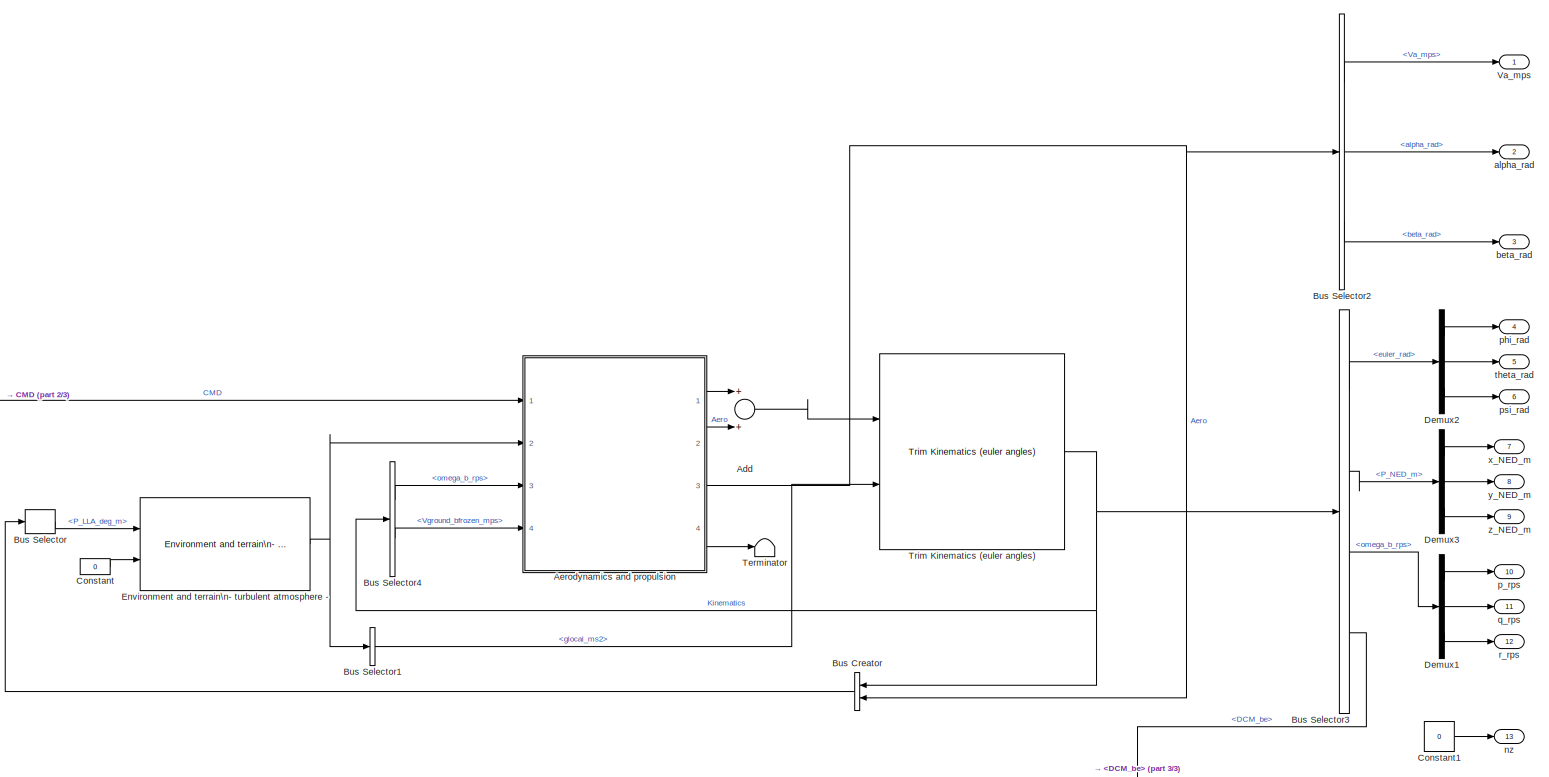
[diagram: root canvas - part 1/3, full width, middle band]
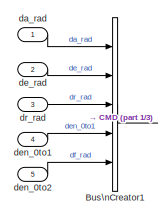
[diagram: root canvas - part 2/3, middle left region]
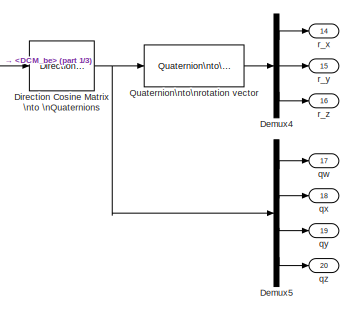
[diagram: root canvas - part 3/3, bottom right region]
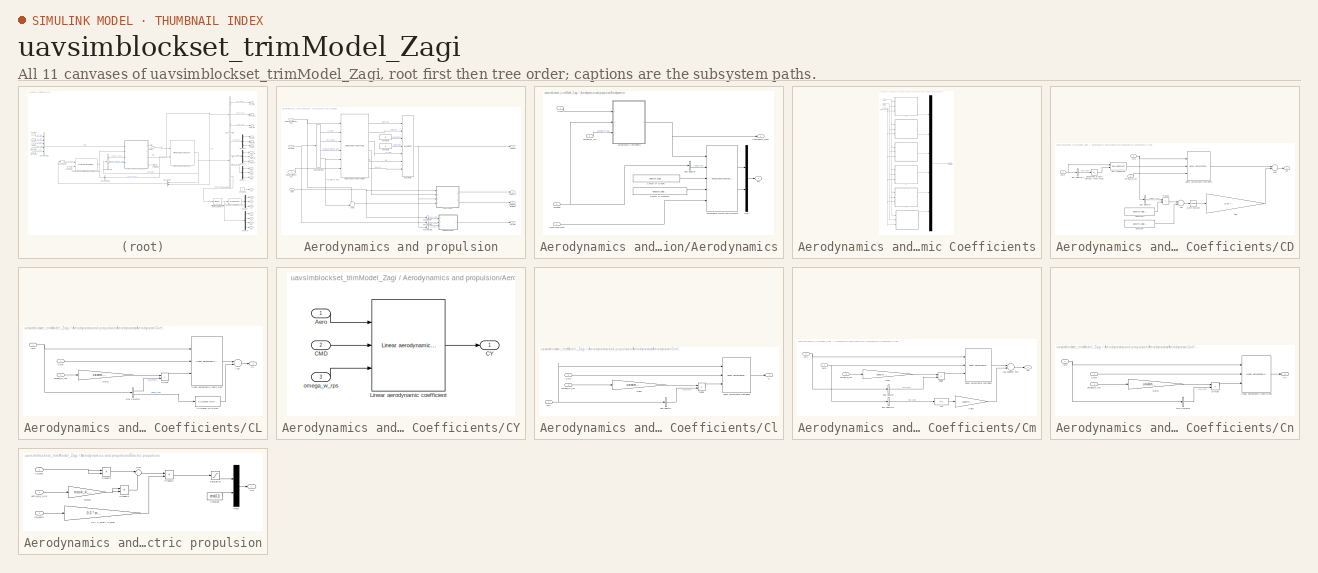
[diagram: thumbnail index - all 11 canvases of the model, root first then tree order]
MODEL uavsimblockset_trimModel_Zagi
KIND model
BLOCK [Sum] Add
  InputSameDT = off
  OutDataTypeStr = Inherit: Inherit via internal rule
  Ports = [2, 1]
  SID = 1059
  SaturateOnIntegerOverflow = off
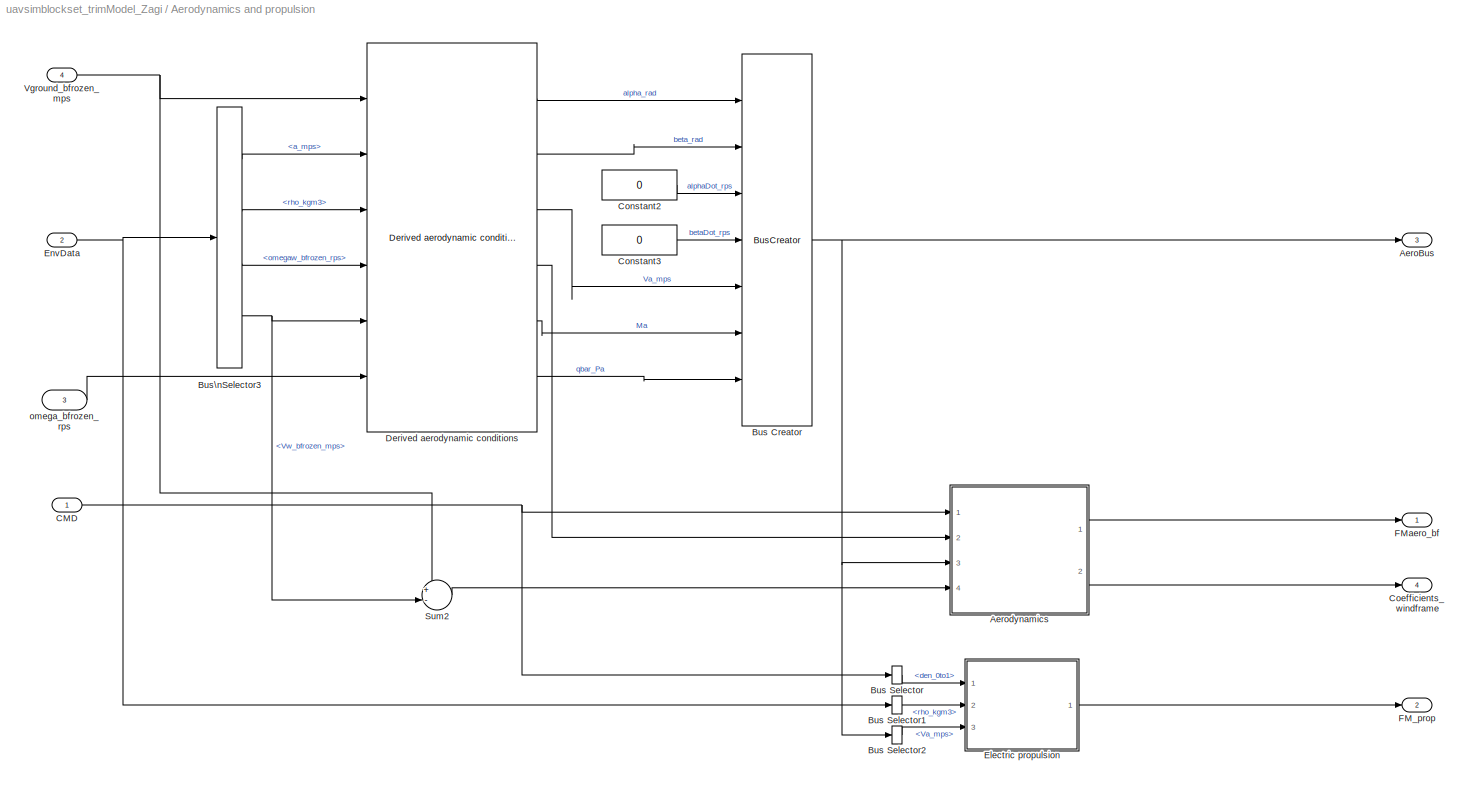
BLOCK [SubSystem] Aerodynamics and propulsion
  AncestorBlock = uavsimBlockset_Zagi_Aerandpropulsion/Zagi aerodynamics and propulsion
  FunctionWithSeparateData = off
  MaskHideContents = off
  MinAlgLoopOccurrences = off
  Opaque = off
  Ports = [4, 4]
  PropExecContextOutsideSubsystem = off
  RTWSystemCode = Auto
  RequestExecContextInheritance = off
  SID = 1023
BLOCK [Outport] Aerodynamics and propulsion/AeroBus
  IconDisplay = Port number
  OutDataTypeStr = Bus: Aero
  Port = 3
  SID = 1023:335
BLOCK [SubSystem] Aerodynamics and propulsion/Aerodynamics
  FunctionWithSeparateData = off
  MaskHideContents = off
  MinAlgLoopOccurrences = off
  Opaque = off
  Ports = [4, 2]
  PropExecContextOutsideSubsystem = off
  RTWSystemCode = Auto
  RequestExecContextInheritance = off
  SID = 1023:325
BLOCK [Inport] Aerodynamics and propulsion/Aerodynamics/AeroBus
  IconDisplay = Port number
  OutDataTypeStr = Bus: Aero
  Port = 3
  SID = 1023:339
BLOCK [SubSystem] Aerodynamics and propulsion/Aerodynamics/Aerodynamic Coefficients
  FunctionWithSeparateData = off
  MaskHideContents = off
  MinAlgLoopOccurrences = off
  Opaque = off
  Ports = [3, 1]
  PropExecContextOutsideSubsystem = off
  RTWSystemCode = Auto
  RequestExecContextInheritance = off
  SID = 1023:340
BLOCK [Inport] Aerodynamics and propulsion/Aerodynamics/Aerodynamic Coefficients/Aero
  IconDisplay = Port number
  OutDataTypeStr = Bus: Aero
  Port = 2
  SID = 1023:4174
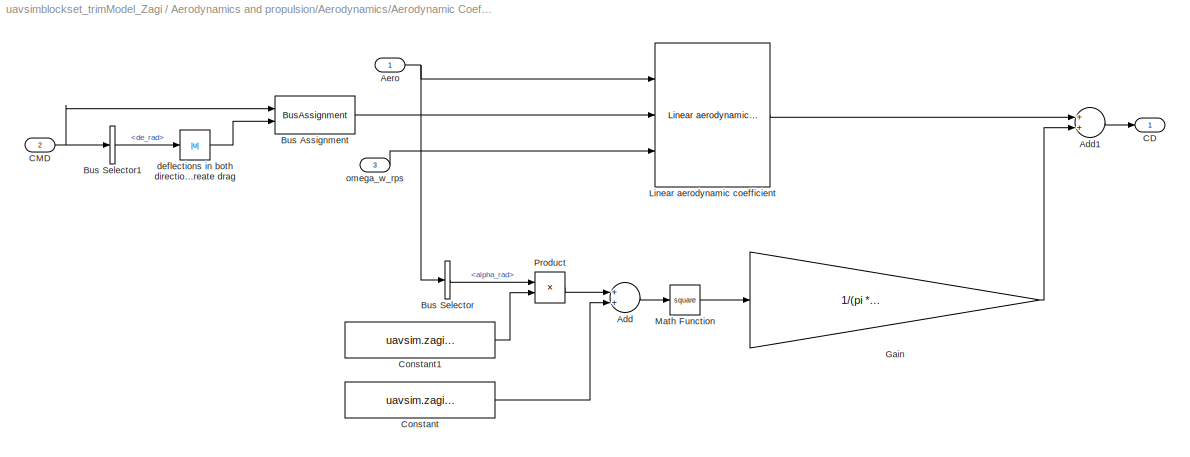
BLOCK [SubSystem] Aerodynamics and propulsion/Aerodynamics/Aerodynamic Coefficients/CD
  FunctionWithSeparateData = off
  MaskHideContents = off
  MinAlgLoopOccurrences = off
  Opaque = off
  Ports = [3, 1]
  PropExecContextOutsideSubsystem = off
  RTWSystemCode = Auto
  RequestExecContextInheritance = off
  SID = 1023:4092
BLOCK [Sum] Aerodynamics and propulsion/Aerodynamics/Aerodynamic Coefficients/CD/Add
  InputSameDT = off
  OutDataTypeStr = Inherit: Inherit via internal rule
  Ports = [2, 1]
  SID = 1023:4158
  SaturateOnIntegerOverflow = off
BLOCK [Sum] Aerodynamics and propulsion/Aerodynamics/Aerodynamic Coefficients/CD/Add1
  InputSameDT = off
  OutDataTypeStr = Inherit: Inherit via internal rule
  Ports = [2, 1]
  SID = 1023:4164
  SaturateOnIntegerOverflow = off
BLOCK [Inport] Aerodynamics and propulsion/Aerodynamics/Aerodynamic Coefficients/CD/Aero
  IconDisplay = Port number
  OutDataTypeStr = Bus: Aero
  SID = 1023:4093
BLOCK [BusAssignment] Aerodynamics and propulsion/Aerodynamics/Aerodynamic Coefficients/CD/Bus Assignment
  AssignedSignals = de_rad
  Ports = [2, 1]
  SID = 1023:4376
BLOCK [BusSelector] Aerodynamics and propulsion/Aerodynamics/Aerodynamic Coefficients/CD/Bus Selector
  OutputSignals = alpha_rad
  Ports = [1, 1]
  SID = 1023:4367
BLOCK [BusSelector] Aerodynamics and propulsion/Aerodynamics/Aerodynamic Coefficients/CD/Bus Selector1
  OutputSignals = de_rad
  Ports = [1, 1]
  SID = 1023:4377
BLOCK [Outport] Aerodynamics and propulsion/Aerodynamics/Aerodynamic Coefficients/CD/CD
  IconDisplay = Port number
  SID = 1023:4094
BLOCK [Inport] Aerodynamics and propulsion/Aerodynamics/Aerodynamic Coefficients/CD/CMD
  IconDisplay = Port number
  OutDataTypeStr = Bus: CMD
  Port = 2
  SID = 1023:4179
BLOCK [Constant] Aerodynamics and propulsion/Aerodynamics/Aerodynamic Coefficients/CD/Constant
  SID = 1023:4156
  Value = uavsim.zagi.CL_0
BLOCK [Constant] Aerodynamics and propulsion/Aerodynamics/Aerodynamic Coefficients/CD/Constant1
  SID = 1023:4366
  Value = uavsim.zagi.CL_alpha
BLOCK [Gain] Aerodynamics and propulsion/Aerodynamics/Aerodynamic Coefficients/CD/Gain
  Gain = 1/(pi * uavsim.zagi.oswald * uavsim.zagi.AR)
  OutDataTypeStr = Inherit: Inherit via internal rule
  ParamDataTypeStr = Inherit: Inherit via internal rule
  SID = 1023:4157
  SaturateOnIntegerOverflow = off
BLOCK [Reference] Aerodynamics and propulsion/Aerodynamics/Aerodynamic Coefficients/CD/Linear aerodynamic coefficient  REF=uavsimBlockset_LinearAerodynamicCoefficient/Linear aerodynamic coefficient
  Ports = [3, 1]
  SID = 1023:4091
  SourceBlock = uavsimBlockset_LinearAerodynamicCoefficient/Linear aerodynamic coefficient
  mask_C_0 = uavsim.zagi.CD_0
  mask_C_Mach = 0
  mask_C_alpha = 0
  mask_C_alphaDot = 0
  mask_C_beta = 0
  mask_C_betaDot = 0
  mask_C_delta_a = 0
  mask_C_delta_e = uavsim.zagi.CD_de
  mask_C_delta_f = 0
  mask_C_delta_r = 0
  mask_C_p = 0
  mask_C_q = 0
  mask_C_r = 0
BLOCK [Math] Aerodynamics and propulsion/Aerodynamics/Aerodynamic Coefficients/CD/Math Function
  Operator = square
  Ports = [1, 1]
  SID = 1023:4163
BLOCK [Product] Aerodynamics and propulsion/Aerodynamics/Aerodynamic Coefficients/CD/Product
  InputSameDT = off
  OutDataTypeStr = Inherit: Inherit via internal rule
  Ports = [2, 1]
  SID = 1023:4368
  SaturateOnIntegerOverflow = off
BLOCK [Abs] Aerodynamics and propulsion/Aerodynamics/Aerodynamic Coefficients/CD/deflections in both directions\nalways create drag
  SID = 1023:4378
  SaturateOnIntegerOverflow = off
BLOCK [Inport] Aerodynamics and propulsion/Aerodynamics/Aerodynamic Coefficients/CD/omega_w_rps
  IconDisplay = Port number
  Port = 3
  SID = 1023:4186
BLOCK [SubSystem] Aerodynamics and propulsion/Aerodynamics/Aerodynamic Coefficients/CL
  FunctionWithSeparateData = off
  MaskHideContents = off
  MinAlgLoopOccurrences = off
  Opaque = off
  Ports = [3, 1]
  PropExecContextOutsideSubsystem = off
  RTWSystemCode = Auto
  RequestExecContextInheritance = off
  SID = 1023:4210
BLOCK [Sum] Aerodynamics and propulsion/Aerodynamics/Aerodynamic Coefficients/CL/Add
  InputSameDT = off
  OutDataTypeStr = Inherit: Inherit via internal rule
  Ports = [2, 1]
  SID = 1023:4428
  SaturateOnIntegerOverflow = off
BLOCK [Inport] Aerodynamics and propulsion/Aerodynamics/Aerodynamic Coefficients/CL/Aero
  IconDisplay = Port number
  OutDataTypeStr = Bus: Aero
  SID = 1023:4211
BLOCK [BusSelector] Aerodynamics and propulsion/Aerodynamics/Aerodynamic Coefficients/CL/Bus Selector
  OutputSignals = Va_mps,alpha_rad
  Ports = [1, 2]
  SID = 1023:4214
BLOCK [Outport] Aerodynamics and propulsion/Aerodynamics/Aerodynamic Coefficients/CL/CL
  IconDisplay = Port number
  SID = 1023:4218
BLOCK [Reference] Aerodynamics and propulsion/Aerodynamics/Aerodynamic Coefficients/CL/CL(alpha) with stall  REF=uavsimBlockset_LiftCoefficientWithStall/CL(alpha) with stall
  Ports = [1, 1]
  SID = 1023:4427
  SourceBlock = uavsimBlockset_LiftCoefficientWithStall/CL(alpha) with stall
  mask_CL_0 = uavsim.zagi.CL_0
  mask_CL_alpha = uavsim.zagi.CL_alpha
  mask_M = uavsim.zagi.stall.M
  mask_alpha0 = uavsim.zagi.alpha0
BLOCK [Inport] Aerodynamics and propulsion/Aerodynamics/Aerodynamic Coefficients/CL/CMD
  IconDisplay = Port number
  OutDataTypeStr = Bus: CMD
  Port = 2
  SID = 1023:4212
BLOCK [Product] Aerodynamics and propulsion/Aerodynamics/Aerodynamic Coefficients/CL/Divide
  InputSameDT = off
  Inputs = */
  OutDataTypeStr = Inherit: Inherit via internal rule
  Ports = [2, 1]
  RndMeth = Floor
  SID = 1023:4215
  SaturateOnIntegerOverflow = off
BLOCK [Gain] Aerodynamics and propulsion/Aerodynamics/Aerodynamic Coefficients/CL/Gain1
  Gain = uavsim.zagi.c / 2
  OutDataTypeStr = Inherit: Inherit via internal rule
  ParamDataTypeStr = Inherit: Inherit via internal rule
  SID = 1023:4216
  SaturateOnIntegerOverflow = off
BLOCK [Reference] Aerodynamics and propulsion/Aerodynamics/Aerodynamic Coefficients/CL/Linear aerodynamic coefficient  REF=uavsimBlockset_LinearAerodynamicCoefficient/Linear aerodynamic coefficient
  Ports = [3, 1]
  SID = 1023:4217
  SourceBlock = uavsimBlockset_LinearAerodynamicCoefficient/Linear aerodynamic coefficient
  mask_C_0 = 0
  mask_C_Mach = 0
  mask_C_alpha = 0
  mask_C_alphaDot = 0
  mask_C_beta = 0
  mask_C_betaDot = 0
  mask_C_delta_a = 0
  mask_C_delta_e = uavsim.zagi.CL_de
  mask_C_delta_f = 0
  mask_C_delta_r = 0
  mask_C_p = 0
  mask_C_q = uavsim.zagi.CL_q
  mask_C_r = 0
BLOCK [Inport] Aerodynamics and propulsion/Aerodynamics/Aerodynamic Coefficients/CL/omega_w_rps
  IconDisplay = Port number
  Port = 3
  SID = 1023:4213
BLOCK [Inport] Aerodynamics and propulsion/Aerodynamics/Aerodynamic Coefficients/CMD
  IconDisplay = Port number
  SID = 1023:341
BLOCK [SubSystem] Aerodynamics and propulsion/Aerodynamics/Aerodynamic Coefficients/CY
  FunctionWithSeparateData = off
  MaskHideContents = off
  MinAlgLoopOccurrences = off
  Opaque = off
  Ports = [3, 1]
  PropExecContextOutsideSubsystem = off
  RTWSystemCode = Auto
  RequestExecContextInheritance = off
  SID = 1023:4196
BLOCK [Inport] Aerodynamics and propulsion/Aerodynamics/Aerodynamic Coefficients/CY/Aero
  IconDisplay = Port number
  OutDataTypeStr = Bus: Aero
  SID = 1023:4197
BLOCK [Inport] Aerodynamics and propulsion/Aerodynamics/Aerodynamic Coefficients/CY/CMD
  IconDisplay = Port number
  OutDataTypeStr = Bus: CMD
  Port = 2
  SID = 1023:4198
BLOCK [Outport] Aerodynamics and propulsion/Aerodynamics/Aerodynamic Coefficients/CY/CY
  IconDisplay = Port number
  SID = 1023:4207
BLOCK [Reference] Aerodynamics and propulsion/Aerodynamics/Aerodynamic Coefficients/CY/Linear aerodynamic coefficient  REF=uavsimBlockset_LinearAerodynamicCoefficient/Linear aerodynamic coefficient
  Ports = [3, 1]
  SID = 1023:4205
  SourceBlock = uavsimBlockset_LinearAerodynamicCoefficient/Linear aerodynamic coefficient
  mask_C_0 = 0
  mask_C_Mach = 0
  mask_C_alpha = 0
  mask_C_alphaDot = 0
  mask_C_beta = uavsim.zagi.CY_beta
  mask_C_betaDot = 0
  mask_C_delta_a = 0
  mask_C_delta_e = 0
  mask_C_delta_f = 0
  mask_C_delta_r = 0
  mask_C_p = 0
  mask_C_q = 0
  mask_C_r = 0
BLOCK [Inport] Aerodynamics and propulsion/Aerodynamics/Aerodynamic Coefficients/CY/omega_w_rps
  IconDisplay = Port number
  Port = 3
  SID = 1023:4199
BLOCK [SubSystem] Aerodynamics and propulsion/Aerodynamics/Aerodynamic Coefficients/Cl
  FunctionWithSeparateData = off
  MaskHideContents = off
  MinAlgLoopOccurrences = off
  Opaque = off
  Ports = [3, 1]
  PropExecContextOutsideSubsystem = off
  RTWSystemCode = Auto
  RequestExecContextInheritance = off
  SID = 1023:4224
BLOCK [Inport] Aerodynamics and propulsion/Aerodynamics/Aerodynamic Coefficients/Cl/Aero
  IconDisplay = Port number
  OutDataTypeStr = Bus: Aero
  SID = 1023:4225
BLOCK [BusSelector] Aerodynamics and propulsion/Aerodynamics/Aerodynamic Coefficients/Cl/Bus Selector
  OutputSignals = Va_mps
  Ports = [1, 1]
  SID = 1023:4229
BLOCK [Inport] Aerodynamics and propulsion/Aerodynamics/Aerodynamic Coefficients/Cl/CMD
  IconDisplay = Port number
  OutDataTypeStr = Bus: CMD
  Port = 2
  SID = 1023:4226
BLOCK [Outport] Aerodynamics and propulsion/Aerodynamics/Aerodynamic Coefficients/Cl/Cl
  IconDisplay = Port number
  SID = 1023:4236
BLOCK [Product] Aerodynamics and propulsion/Aerodynamics/Aerodynamic Coefficients/Cl/Divide
  InputSameDT = off
  Inputs = */
  OutDataTypeStr = Inherit: Inherit via internal rule
  Ports = [2, 1]
  RndMeth = Floor
  SID = 1023:4231
  SaturateOnIntegerOverflow = off
BLOCK [Gain] Aerodynamics and propulsion/Aerodynamics/Aerodynamic Coefficients/Cl/Gain1
  Gain = uavsim.zagi.b / 2
  OutDataTypeStr = Inherit: Inherit via internal rule
  ParamDataTypeStr = Inherit: Inherit via internal rule
  SID = 1023:4233
  SaturateOnIntegerOverflow = off
BLOCK [Reference] Aerodynamics and propulsion/Aerodynamics/Aerodynamic Coefficients/Cl/Linear aerodynamic coefficient  REF=uavsimBlockset_LinearAerodynamicCoefficient/Linear aerodynamic coefficient
  Ports = [3, 1]
  SID = 1023:4235
  SourceBlock = uavsimBlockset_LinearAerodynamicCoefficient/Linear aerodynamic coefficient
  mask_C_0 = 0
  mask_C_Mach = 0
  mask_C_alpha = 0
  mask_C_alphaDot = 0
  mask_C_beta = uavsim.zagi.Cl_beta
  mask_C_betaDot = 0
  mask_C_delta_a = uavsim.zagi.Cl_da
  mask_C_delta_e = 0
  mask_C_delta_f = 0
  mask_C_delta_r = 0
  mask_C_p = uavsim.zagi.Cl_p
  mask_C_q = 0
  mask_C_r = uavsim.zagi.Cl_r
BLOCK [Inport] Aerodynamics and propulsion/Aerodynamics/Aerodynamic Coefficients/Cl/omega_w_rps
  IconDisplay = Port number
  Port = 3
  SID = 1023:4227
BLOCK [SubSystem] Aerodynamics and propulsion/Aerodynamics/Aerodynamic Coefficients/Cm
  FunctionWithSeparateData = off
  MaskHideContents = off
  MinAlgLoopOccurrences = off
  Opaque = off
  Ports = [3, 1]
  PropExecContextOutsideSubsystem = off
  RTWSystemCode = Auto
  RequestExecContextInheritance = off
  SID = 1023:4246
BLOCK [Sum] Aerodynamics and propulsion/Aerodynamics/Aerodynamic Coefficients/Cm/Add nonlinear part
  InputSameDT = off
  OutDataTypeStr = Inherit: Inherit via internal rule
  Ports = [2, 1]
  SID = 1023:4440
  SaturateOnIntegerOverflow = off
BLOCK [Inport] Aerodynamics and propulsion/Aerodynamics/Aerodynamic Coefficients/Cm/Aero
  IconDisplay = Port number
  OutDataTypeStr = Bus: Aero
  SID = 1023:4247
BLOCK [BusSelector] Aerodynamics and propulsion/Aerodynamics/Aerodynamic Coefficients/Cm/Bus Selector
  OutputSignals = Va_mps
  Ports = [1, 1]
  SID = 1023:4251
BLOCK [BusSelector] Aerodynamics and propulsion/Aerodynamics/Aerodynamic Coefficients/Cm/Bus Selector1
  OutputSignals = de_rad
  Ports = [1, 1]
  SID = 1023:4443
BLOCK [Inport] Aerodynamics and propulsion/Aerodynamics/Aerodynamic Coefficients/Cm/CMD
  IconDisplay = Port number
  OutDataTypeStr = Bus: CMD
  Port = 2
  SID = 1023:4248
BLOCK [Outport] Aerodynamics and propulsion/Aerodynamics/Aerodynamic Coefficients/Cm/Cm
  IconDisplay = Port number
  SID = 1023:4258
BLOCK [Product] Aerodynamics and propulsion/Aerodynamics/Aerodynamic Coefficients/Cm/Divide
  InputSameDT = off
  Inputs = */
  OutDataTypeStr = Inherit: Inherit via internal rule
  Ports = [2, 1]
  RndMeth = Floor
  SID = 1023:4253
  SaturateOnIntegerOverflow = off
BLOCK [Fcn] Aerodynamics and propulsion/Aerodynamics/Aerodynamic Coefficients/Cm/Fcn
  Expr = u^3
  SID = 1023:4442
BLOCK [Gain] Aerodynamics and propulsion/Aerodynamics/Aerodynamic Coefficients/Cm/Gain1
  Gain = uavsim.zagi.c / 2
  OutDataTypeStr = Inherit: Inherit via internal rule
  ParamDataTypeStr = Inherit: Inherit via internal rule
  SID = 1023:4255
  SaturateOnIntegerOverflow = off
BLOCK [Gain] Aerodynamics and propulsion/Aerodynamics/Aerodynamic Coefficients/Cm/Gain2
  Gain = uavsim.zagi.Cm_de3
  OutDataTypeStr = Inherit: Inherit via internal rule
  ParamDataTypeStr = Inherit: Inherit via internal rule
  SID = 1023:4441
  SaturateOnIntegerOverflow = off
BLOCK [Reference] Aerodynamics and propulsion/Aerodynamics/Aerodynamic Coefficients/Cm/Linear aerodynamic coefficient  REF=uavsimBlockset_LinearAerodynamicCoefficient/Linear aerodynamic coefficient
  Ports = [3, 1]
  SID = 1023:4257
  SourceBlock = uavsimBlockset_LinearAerodynamicCoefficient/Linear aerodynamic coefficient
  mask_C_0 = uavsim.zagi.Cm_0
  mask_C_Mach = 0
  mask_C_alpha = uavsim.zagi.Cm_alpha
  mask_C_alphaDot = 0
  mask_C_beta = 0
  mask_C_betaDot = 0
  mask_C_delta_a = 0
  mask_C_delta_e = uavsim.zagi.Cm_de
  mask_C_delta_f = 0
  mask_C_delta_r = 0
  mask_C_p = 0
  mask_C_q = uavsim.zagi.Cm_q
  mask_C_r = 0
BLOCK [Inport] Aerodynamics and propulsion/Aerodynamics/Aerodynamic Coefficients/Cm/omega_w_rps
  IconDisplay = Port number
  Port = 3
  SID = 1023:4249
BLOCK [SubSystem] Aerodynamics and propulsion/Aerodynamics/Aerodynamic Coefficients/Cn
  FunctionWithSeparateData = off
  MaskHideContents = off
  MinAlgLoopOccurrences = off
  Opaque = off
  Ports = [3, 1]
  PropExecContextOutsideSubsystem = off
  RTWSystemCode = Auto
  RequestExecContextInheritance = off
  SID = 1023:4259
BLOCK [Inport] Aerodynamics and propulsion/Aerodynamics/Aerodynamic Coefficients/Cn/Aero
  IconDisplay = Port number
  OutDataTypeStr = Bus: Aero
  SID = 1023:4260
BLOCK [BusSelector] Aerodynamics and propulsion/Aerodynamics/Aerodynamic Coefficients/Cn/Bus Selector
  OutputSignals = Va_mps
  Ports = [1, 1]
  SID = 1023:4263
BLOCK [Inport] Aerodynamics and propulsion/Aerodynamics/Aerodynamic Coefficients/Cn/CMD
  IconDisplay = Port number
  OutDataTypeStr = Bus: CMD
  Port = 2
  SID = 1023:4261
BLOCK [Outport] Aerodynamics and propulsion/Aerodynamics/Aerodynamic Coefficients/Cn/Cn
  IconDisplay = Port number
  SID = 1023:4267
BLOCK [Product] Aerodynamics and propulsion/Aerodynamics/Aerodynamic Coefficients/Cn/Divide
  InputSameDT = off
  Inputs = */
  OutDataTypeStr = Inherit: Inherit via internal rule
  Ports = [2, 1]
  RndMeth = Floor
  SID = 1023:4264
  SaturateOnIntegerOverflow = off
BLOCK [Gain] Aerodynamics and propulsion/Aerodynamics/Aerodynamic Coefficients/Cn/Gain1
  Gain = uavsim.zagi.b / 2
  OutDataTypeStr = Inherit: Inherit via internal rule
  ParamDataTypeStr = Inherit: Inherit via internal rule
  SID = 1023:4265
  SaturateOnIntegerOverflow = off
BLOCK [Reference] Aerodynamics and propulsion/Aerodynamics/Aerodynamic Coefficients/Cn/Linear aerodynamic coefficient  REF=uavsimBlockset_LinearAerodynamicCoefficient/Linear aerodynamic coefficient
  Ports = [3, 1]
  SID = 1023:4266
  SourceBlock = uavsimBlockset_LinearAerodynamicCoefficient/Linear aerodynamic coefficient
  mask_C_0 = 0
  mask_C_Mach = 0
  mask_C_alpha = 0
  mask_C_alphaDot = 0
  mask_C_beta = uavsim.zagi.Cn_beta
  mask_C_betaDot = 0
  mask_C_delta_a = uavsim.zagi.Cn_da
  mask_C_delta_e = 0
  mask_C_delta_f = 0
  mask_C_delta_r = 0
  mask_C_p = uavsim.zagi.Cn_p
  mask_C_q = 0
  mask_C_r = uavsim.zagi.Cn_r
BLOCK [Inport] Aerodynamics and propulsion/Aerodynamics/Aerodynamic Coefficients/Cn/omega_w_rps
  IconDisplay = Port number
  Port = 3
  SID = 1023:4262
BLOCK [Outport] Aerodynamics and propulsion/Aerodynamics/Aerodynamic Coefficients/CoeffStab
  IconDisplay = Port number
  SID = 1023:496
BLOCK [Mux] Aerodynamics and propulsion/Aerodynamics/Aerodynamic Coefficients/Mux2
  DisplayOption = bar
  Inputs = 6
  Ports = [6, 1]
  SID = 1023:4155
BLOCK [Inport] Aerodynamics and propulsion/Aerodynamics/Aerodynamic Coefficients/omega_w_rps
  IconDisplay = Port number
  Port = 3
  SID = 1023:4184
BLOCK [Reference] Aerodynamics and propulsion/Aerodynamics/Aerodynamic Forces and Moments   REF=aerolibadyn/Aerodynamic\nForces and Moments 
  Ports = [5, 2]
  S = uavsim.zagi.S
  SID = 1023:497
  SourceBlock = aerolibadyn/Aerodynamic\nForces and Moments
  SourceType = Aerodynamic Forces and Moments
  b = uavsim.zagi.b
  cbar = uavsim.zagi.c
  inputAxes = Wind
  outputForceAxes = Body
  outputMomentAxes = Body
BLOCK [BusSelector] Aerodynamics and propulsion/Aerodynamics/Bus Selector
  OutputSignals = qbar_Pa
  Ports = [1, 1]
  SID = 1023:4178
BLOCK [Inport] Aerodynamics and propulsion/Aerodynamics/CMD
  IconDisplay = Port number
  OutDataTypeStr = Bus: CMD
  SID = 1023:336
BLOCK [Constant] Aerodynamics and propulsion/Aerodynamics/Center of Gravity
  SID = 1023:500
  SampleTime = 0
  Value = uavsim.zagi.centerOfGravity_b_m
BLOCK [Constant] Aerodynamics and propulsion/Aerodynamics/Center of Pressure
  SID = 1023:501
  SampleTime = 0
  Value = uavsim.zagi.aerodynamicCenter_b_m
BLOCK [Outport] Aerodynamics and propulsion/Aerodynamics/Coefficients_wind
  IconDisplay = Port number
  Port = 2
  SID = 1023:4338
BLOCK [Outport] Aerodynamics and propulsion/Aerodynamics/FM
  IconDisplay = Port number
  SID = 1023:524
BLOCK [Mux] Aerodynamics and propulsion/Aerodynamics/Mux
  DisplayOption = bar
  Inputs = 2
  Ports = [2, 1]
  SID = 1023:522
BLOCK [Inport] Aerodynamics and propulsion/Aerodynamics/Va_bfrozen_mps
  IconDisplay = Port number
  Port = 4
  SID = 1023:4437
BLOCK [Inport] Aerodynamics and propulsion/Aerodynamics/omega_w_rps
  IconDisplay = Port number
  Port = 2
  SID = 1023:338
BLOCK [BusCreator] Aerodynamics and propulsion/Bus Creator
  DisplayOption = bar
  Inputs = 7
  Ports = [7, 1]
  SID = 1023:4436
BLOCK [BusSelector] Aerodynamics and propulsion/Bus Selector
  OutputSignals = den_0to1
  Ports = [1, 1]
  SID = 1023:4323
BLOCK [BusSelector] Aerodynamics and propulsion/Bus Selector1
  OutputSignals = rho_kgm3
  Ports = [1, 1]
  SID = 1023:4324
BLOCK [BusSelector] Aerodynamics and propulsion/Bus Selector2
  OutputSignals = Va_mps
  Ports = [1, 1]
  SID = 1023:4325
BLOCK [BusSelector] Aerodynamics and propulsion/Bus\nSelector3
  OutputSignals = a_mps,rho_kgm3,omegaw_bfrozen_rps,Vw_bfrozen_mps
  Ports = [1, 4]
  SID = 1023:4431
BLOCK [Inport] Aerodynamics and propulsion/CMD
  IconDisplay = Port number
  OutDataTypeStr = Bus: CMD
  SID = 1023:330
BLOCK [Outport] Aerodynamics and propulsion/Coefficients_windframe
  IconDisplay = Port number
  Port = 4
  SID = 1023:4339
BLOCK [Constant] Aerodynamics and propulsion/Constant2
  SID = 1023:4433
  Value = 0
BLOCK [Constant] Aerodynamics and propulsion/Constant3
  SID = 1023:4434
  Value = 0
BLOCK [Reference] Aerodynamics and propulsion/Derived aerodynamic conditions  REF=uavsimBlockset_DerivedAerodynamicConditions/Derived aerodynamic conditions
  Ports = [6, 6]
  SID = 1023:4432
  SourceBlock = uavsimBlockset_DerivedAerodynamicConditions/Derived aerodynamic conditions
  SourceType = SubSystem
BLOCK [SubSystem] Aerodynamics and propulsion/Electric propulsion
  AncestorBlock = uavsimBlockset_ElectricPropulsion/Electric propulsion
  FunctionWithSeparateData = off
  MaskHideContents = off
  MinAlgLoopOccurrences = off
  Opaque = off
  Ports = [3, 1]
  PropExecContextOutsideSubsystem = off
  RTWSystemCode = Auto
  RequestExecContextInheritance = off
  SID = 1023:4322
BLOCK [Gain] Aerodynamics and propulsion/Electric propulsion/0.5 * C_prop * S_prop
  Gain = 0.5 * mask_S_prop * mask_C_prop
  OutDataTypeStr = Inherit: Inherit via internal rule
  ParamDataTypeStr = Inherit: Inherit via internal rule
  SID = 1023:4322:4305
  SaturateOnIntegerOverflow = off
BLOCK [Constant] Aerodynamics and propulsion/Electric propulsion/Constant
  SID = 1023:4322:4309
  Value = zeros(5,1)
BLOCK [Outport] Aerodynamics and propulsion/Electric propulsion/FM
  IconDisplay = Port number
  SID = 1023:4322:4321
BLOCK [Mux] Aerodynamics and propulsion/Electric propulsion/Mux1
  Inputs = 2
  Ports = [2, 1]
  SID = 1023:4322:4314
BLOCK [Product] Aerodynamics and propulsion/Electric propulsion/Product2
  InputSameDT = off
  OutDataTypeStr = Inherit: Inherit via internal rule
  Ports = [2, 1]
  SID = 1023:4322:4315
  SaturateOnIntegerOverflow = off
BLOCK [Product] Aerodynamics and propulsion/Electric propulsion/Product3
  InputSameDT = off
  OutDataTypeStr = Inherit: Inherit via internal rule
  Ports = [2, 1]
  SID = 1023:4322:4316
  SaturateOnIntegerOverflow = off
BLOCK [Product] Aerodynamics and propulsion/Electric propulsion/Product4
  InputSameDT = off
  OutDataTypeStr = Inherit: Inherit via internal rule
  Ports = [2, 1]
  SID = 1023:4322:4317
  SaturateOnIntegerOverflow = off
BLOCK [Saturate] Aerodynamics and propulsion/Electric propulsion/Saturation
  InputPortMap = u0
  LowerLimit = 0
  Ports = [1, 1]
  SID = 1023:4322:4318
  UpperLimit = inf
BLOCK [Sum] Aerodynamics and propulsion/Electric propulsion/Sum
  IconShape = round
  InputSameDT = off
  Inputs = |-+
  OutDataTypeStr = Inherit: Inherit via internal rule
  Ports = [2, 1]
  SID = 1023:4322:4319
  SaturateOnIntegerOverflow = off
BLOCK [Inport] Aerodynamics and propulsion/Electric propulsion/Va_mps
  IconDisplay = Port number
  Port = 3
  SID = 1023:4322:4304
BLOCK [Inport] Aerodynamics and propulsion/Electric propulsion/delta_en_c_[0,1]
  IconDisplay = Port number
  SID = 1023:4322:2633
BLOCK [Gain] Aerodynamics and propulsion/Electric propulsion/kmotor
  Gain = mask_k_motor
  OutDataTypeStr = Inherit: Inherit via internal rule
  ParamDataTypeStr = Inherit: Inherit via internal rule
  SID = 1023:4322:4320
  SaturateOnIntegerOverflow = off
BLOCK [Inport] Aerodynamics and propulsion/Electric propulsion/rho_kgm3
  IconDisplay = Port number
  Port = 2
  SID = 1023:4322:4303
BLOCK [Inport] Aerodynamics and propulsion/EnvData
  IconDisplay = Port number
  OutDataTypeStr = Bus: Environment
  Port = 2
  SID = 1023:331
BLOCK [Outport] Aerodynamics and propulsion/FM_prop
  IconDisplay = Port number
  Port = 2
  SID = 1023:4438
BLOCK [Outport] Aerodynamics and propulsion/FMaero_bf
  IconDisplay = Port number
  SID = 1023:334
BLOCK [Sum] Aerodynamics and propulsion/Sum2
  IconShape = round
  Inputs = +-|
  Ports = [2, 1]
  SID = 1023:4439
BLOCK [Inport] Aerodynamics and propulsion/Vground_bfrozen_mps
  IconDisplay = Port number
  Port = 4
  SID = 1023:333
BLOCK [Inport] Aerodynamics and propulsion/omega_bfrozen_rps
  IconDisplay = Port number
  Port = 3
  SID = 1023:332
BLOCK [BusCreator] Bus Creator
  DisplayOption = bar
  Inputs = 2
  Ports = [2, 1]
  SID = 1032
BLOCK [BusSelector] Bus Selector
  OutputSignals = Kinematics.Position.P_LLA_deg_m
  Ports = [1, 1]
  SID = 1057
BLOCK [BusSelector] Bus Selector1
  OutputSignals = glocal_ms2
  Ports = [1, 1]
  SID = 951
BLOCK [BusSelector] Bus Selector2
  OutputSignals = Va_mps,alpha_rad,beta_rad
  Ports = [1, 3]
  SID = 642
BLOCK [BusSelector] Bus Selector3
  OutputSignals = Attitude.euler_rad,Position.P_NED_m,RotationalVelocity.omega_b_rps,Attitude.DCM_be
  Ports = [1, 4]
  SID = 98
BLOCK [BusSelector] Bus Selector4
  OutputSignals = RotationalVelocity.omega_b_rps,Velocity.Vground_bfrozen_mps
  Ports = [1, 2]
  SID = 949
BLOCK [BusCreator] Bus\nCreator1
  DisplayOption = bar
  Inputs = 5
  NonVirtualBus = on
  OutDataTypeStr = Bus: CMD
  Ports = [5, 1]
  SID = 70
BLOCK [Constant] Constant
  SID = 1054
  Value = 0
BLOCK [Constant] Constant1
  SID = 1026
  Value = 0
BLOCK [Demux] Demux1
  DisplayOption = bar
  Outputs = 3
  Ports = [1, 3]
  SID = 122
BLOCK [Demux] Demux2
  DisplayOption = bar
  Outputs = 3
  Ports = [1, 3]
  SID = 99
BLOCK [Demux] Demux3
  DisplayOption = bar
  Outputs = 3
  Ports = [1, 3]
  SID = 965
BLOCK [Demux] Demux4
  DisplayOption = bar
  Outputs = 3
  Ports = [1, 3]
  SID = 1010
BLOCK [Demux] Demux5
  DisplayOption = bar
  Ports = [1, 4]
  SID = 1017
BLOCK [Reference] Direction Cosine Matrix  \nto \nQuaternions  REF=aerolibtransform2/Direction Cosine Matrix \nto Quaternions
  Ports = [1, 1]
  SID = 1011
  SourceBlock = aerolibtransform2/Direction Cosine Matrix \nto Quaternions
  SourceType = DCM2Quaternion
BLOCK [Reference] Environment and terrain\n- turbulent atmosphere -  REF=uavsimBlockset_Environment_calmAtmosphere/Environment and terrain\n- calm atmosphere -
  FunctionWithSeparateData = off
  GeneratePreprocessorConditionals = off
  Ports = [2, 1]
  SID = 1058
  ShowPortLabels = FromPortIcon
  SourceBlock = uavsimBlockset_Environment_calmAtmosphere/Environment and terrain\n- calm atmosphere -
  SystemSampleTime = -1
BLOCK [Reference] Quaternion\nto\nrotation vector  REF=uavsimBlockset_Quaternion2Rotationvector/Quaternion\nto\nrotation vector
  Ports = [1, 1]
  SID = 1012
  SourceBlock = uavsimBlockset_Quaternion2Rotationvector/Quaternion\nto\nrotation vector
  SourceType = SubSystem
BLOCK [Terminator] Terminator
  SID = 1029
BLOCK [Reference] Trim Kinematics (euler angles)  REF=uavsimblockset_TrimKinematics/Trim Kinematics (euler angles)
  Ports = [2, 1]
  SID = 1025
  SourceBlock = uavsimblockset_TrimKinematics/Trim Kinematics (euler angles)
  mask_P0_ECEF_m = uavsim.mojaveairport_ecef_m
  mask_inertia = uavsim.zagi.inertiaTensor
  mask_mass = uavsim.zagi.mass
  mask_omega0 = [0 0 0]
  mask_phithetapsi0 = [0 0 0]
  mask_uvw0 = [15 0 0]
BLOCK [Outport] Va_mps
  IconDisplay = Port number
  SID = 101
BLOCK [Outport] alpha_rad
  IconDisplay = Port number
  Port = 2
  SID = 102
BLOCK [Outport] beta_rad
  IconDisplay = Port number
  Port = 3
  SID = 103
BLOCK [Inport] da_rad
  IconDisplay = Port number
  SID = 82
BLOCK [Inport] de_rad
  IconDisplay = Port number
  Port = 2
  SID = 83
BLOCK [Inport] den_0to1
  IconDisplay = Port number
  Port = 4
  SID = 85
BLOCK [Inport] den_0to2
  IconDisplay = Port number
  Port = 5
  SID = 1028
BLOCK [Inport] dr_rad
  IconDisplay = Port number
  Port = 3
  SID = 84
BLOCK [Outport] nz
  IconDisplay = Port number
  Port = 13
  SID = 1001
BLOCK [Outport] p_rps
  IconDisplay = Port number
  Port = 10
  SID = 123
BLOCK [Outport] phi_rad
  IconDisplay = Port number
  Port = 4
  SID = 104
BLOCK [Outport] psi_rad
  IconDisplay = Port number
  Port = 6
  SID = 106
BLOCK [Outport] q_rps
  IconDisplay = Port number
  Port = 11
  SID = 124
BLOCK [Outport] qw
  IconDisplay = Port number
  Port = 17
  SID = 1018
BLOCK [Outport] qx
  IconDisplay = Port number
  Port = 18
  SID = 1019
BLOCK [Outport] qy
  IconDisplay = Port number
  Port = 19
  SID = 1020
BLOCK [Outport] qz
  IconDisplay = Port number
  Port = 20
  SID = 1021
BLOCK [Outport] r_rps
  IconDisplay = Port number
  Port = 12
  SID = 125
BLOCK [Outport] r_x
  IconDisplay = Port number
  Port = 14
  SID = 1013
BLOCK [Outport] r_y
  IconDisplay = Port number
  Port = 15
  SID = 1014
BLOCK [Outport] r_z
  IconDisplay = Port number
  Port = 16
  SID = 1015
BLOCK [Outport] theta_rad
  IconDisplay = Port number
  Port = 5
  SID = 105
BLOCK [Outport] x_NED_m
  IconDisplay = Port number
  Port = 7
  SID = 966
BLOCK [Outport] y_NED_m
  IconDisplay = Port number
  Port = 8
  SID = 967
BLOCK [Outport] z_NED_m
  IconDisplay = Port number
  Port = 9
  SID = 968
LINE Add:1 -> Trim Kinematics (euler angles):1
NET Aerodynamics and propulsion/Aerodynamics/AeroBus:1 -> Aerodynamics and propulsion/Aerodynamics/Aerodynamic Coefficients:2, Aerodynamics and propulsion/Aerodynamics/Bus Selector:1
NET Aerodynamics and propulsion/Aerodynamics/Aerodynamic Coefficients/Aero:1 -> Aerodynamics and propulsion/Aerodynamics/Aerodynamic Coefficients/CD:1, Aerodynamics and propulsion/Aerodynamics/Aerodynamic Coefficients/CL:1, Aerodynamics and propulsion/Aerodynamics/Aerodynamic Coefficients/CY:1, Aerodynamics and propulsion/Aerodynamics/Aerodynamic Coefficients/Cl:1, Aerodynamics and propulsion/Aerodynamics/Aerodynamic Coefficients/Cm:1, Aerodynamics and propulsion/Aerodynamics/Aerodynamic Coefficients/Cn:1
LINE Aerodynamics and propulsion/Aerodynamics/Aerodynamic Coefficients/CD/Add1:1 -> Aerodynamics and propulsion/Aerodynamics/Aerodynamic Coefficients/CD/CD:1
LINE Aerodynamics and propulsion/Aerodynamics/Aerodynamic Coefficients/CD/Add:1 -> Aerodynamics and propulsion/Aerodynamics/Aerodynamic Coefficients/CD/Math Function:1
NET Aerodynamics and propulsion/Aerodynamics/Aerodynamic Coefficients/CD/Aero:1 -> Aerodynamics and propulsion/Aerodynamics/Aerodynamic Coefficients/CD/Bus Selector:1, Aerodynamics and propulsion/Aerodynamics/Aerodynamic Coefficients/CD/Linear aerodynamic coefficient:1
LINE Aerodynamics and propulsion/Aerodynamics/Aerodynamic Coefficients/CD/Bus Assignment:1 -> Aerodynamics and propulsion/Aerodynamics/Aerodynamic Coefficients/CD/Linear aerodynamic coefficient:2
LINE Aerodynamics and propulsion/Aerodynamics/Aerodynamic Coefficients/CD/Bus Selector1:1 -> Aerodynamics and propulsion/Aerodynamics/Aerodynamic Coefficients/CD/deflections in both directions\nalways create drag:1
LINE Aerodynamics and propulsion/Aerodynamics/Aerodynamic Coefficients/CD/Bus Selector:1 -> Aerodynamics and propulsion/Aerodynamics/Aerodynamic Coefficients/CD/Product:1
NET Aerodynamics and propulsion/Aerodynamics/Aerodynamic Coefficients/CD/CMD:1 -> Aerodynamics and propulsion/Aerodynamics/Aerodynamic Coefficients/CD/Bus Assignment:1, Aerodynamics and propulsion/Aerodynamics/Aerodynamic Coefficients/CD/Bus Selector1:1
LINE Aerodynamics and propulsion/Aerodynamics/Aerodynamic Coefficients/CD/Constant1:1 -> Aerodynamics and propulsion/Aerodynamics/Aerodynamic Coefficients/CD/Product:2
LINE Aerodynamics and propulsion/Aerodynamics/Aerodynamic Coefficients/CD/Constant:1 -> Aerodynamics and propulsion/Aerodynamics/Aerodynamic Coefficients/CD/Add:2
LINE Aerodynamics and propulsion/Aerodynamics/Aerodynamic Coefficients/CD/Gain:1 -> Aerodynamics and propulsion/Aerodynamics/Aerodynamic Coefficients/CD/Add1:2
LINE Aerodynamics and propulsion/Aerodynamics/Aerodynamic Coefficients/CD/Linear aerodynamic coefficient:1 -> Aerodynamics and propulsion/Aerodynamics/Aerodynamic Coefficients/CD/Add1:1
LINE Aerodynamics and propulsion/Aerodynamics/Aerodynamic Coefficients/CD/Math Function:1 -> Aerodynamics and propulsion/Aerodynamics/Aerodynamic Coefficients/CD/Gain:1
LINE Aerodynamics and propulsion/Aerodynamics/Aerodynamic Coefficients/CD/Product:1 -> Aerodynamics and propulsion/Aerodynamics/Aerodynamic Coefficients/CD/Add:1
LINE Aerodynamics and propulsion/Aerodynamics/Aerodynamic Coefficients/CD/deflections in both directions\nalways create drag:1 -> Aerodynamics and propulsion/Aerodynamics/Aerodynamic Coefficients/CD/Bus Assignment:2
LINE Aerodynamics and propulsion/Aerodynamics/Aerodynamic Coefficients/CD/omega_w_rps:1 -> Aerodynamics and propulsion/Aerodynamics/Aerodynamic Coefficients/CD/Linear aerodynamic coefficient:3
LINE Aerodynamics and propulsion/Aerodynamics/Aerodynamic Coefficients/CD:1 -> Aerodynamics and propulsion/Aerodynamics/Aerodynamic Coefficients/Mux2:1
LINE Aerodynamics and propulsion/Aerodynamics/Aerodynamic Coefficients/CL/Add:1 -> Aerodynamics and propulsion/Aerodynamics/Aerodynamic Coefficients/CL/CL:1
NET Aerodynamics and propulsion/Aerodynamics/Aerodynamic Coefficients/CL/Aero:1 -> Aerodynamics and propulsion/Aerodynamics/Aerodynamic Coefficients/CL/Bus Selector:1, Aerodynamics and propulsion/Aerodynamics/Aerodynamic Coefficients/CL/Linear aerodynamic coefficient:1
LINE Aerodynamics and propulsion/Aerodynamics/Aerodynamic Coefficients/CL/Bus Selector:1 -> Aerodynamics and propulsion/Aerodynamics/Aerodynamic Coefficients/CL/Divide:2
LINE Aerodynamics and propulsion/Aerodynamics/Aerodynamic Coefficients/CL/Bus Selector:2 -> Aerodynamics and propulsion/Aerodynamics/Aerodynamic Coefficients/CL/CL(alpha) with stall:1
LINE Aerodynamics and propulsion/Aerodynamics/Aerodynamic Coefficients/CL/CL(alpha) with stall:1 -> Aerodynamics and propulsion/Aerodynamics/Aerodynamic Coefficients/CL/Add:2
LINE Aerodynamics and propulsion/Aerodynamics/Aerodynamic Coefficients/CL/CMD:1 -> Aerodynamics and propulsion/Aerodynamics/Aerodynamic Coefficients/CL/Linear aerodynamic coefficient:2
LINE Aerodynamics and propulsion/Aerodynamics/Aerodynamic Coefficients/CL/Divide:1 -> Aerodynamics and propulsion/Aerodynamics/Aerodynamic Coefficients/CL/Linear aerodynamic coefficient:3
LINE Aerodynamics and propulsion/Aerodynamics/Aerodynamic Coefficients/CL/Gain1:1 -> Aerodynamics and propulsion/Aerodynamics/Aerodynamic Coefficients/CL/Divide:1
LINE Aerodynamics and propulsion/Aerodynamics/Aerodynamic Coefficients/CL/Linear aerodynamic coefficient:1 -> Aerodynamics and propulsion/Aerodynamics/Aerodynamic Coefficients/CL/Add:1
LINE Aerodynamics and propulsion/Aerodynamics/Aerodynamic Coefficients/CL/omega_w_rps:1 -> Aerodynamics and propulsion/Aerodynamics/Aerodynamic Coefficients/CL/Gain1:1
LINE Aerodynamics and propulsion/Aerodynamics/Aerodynamic Coefficients/CL:1 -> Aerodynamics and propulsion/Aerodynamics/Aerodynamic Coefficients/Mux2:3
NET Aerodynamics and propulsion/Aerodynamics/Aerodynamic Coefficients/CMD:1 -> Aerodynamics and propulsion/Aerodynamics/Aerodynamic Coefficients/CD:2, Aerodynamics and propulsion/Aerodynamics/Aerodynamic Coefficients/CL:2, Aerodynamics and propulsion/Aerodynamics/Aerodynamic Coefficients/CY:2, Aerodynamics and propulsion/Aerodynamics/Aerodynamic Coefficients/Cl:2, Aerodynamics and propulsion/Aerodynamics/Aerodynamic Coefficients/Cm:2, Aerodynamics and propulsion/Aerodynamics/Aerodynamic Coefficients/Cn:2
LINE Aerodynamics and propulsion/Aerodynamics/Aerodynamic Coefficients/CY/Aero:1 -> Aerodynamics and propulsion/Aerodynamics/Aerodynamic Coefficients/CY/Linear aerodynamic coefficient:1
LINE Aerodynamics and propulsion/Aerodynamics/Aerodynamic Coefficients/CY/CMD:1 -> Aerodynamics and propulsion/Aerodynamics/Aerodynamic Coefficients/CY/Linear aerodynamic coefficient:2
LINE Aerodynamics and propulsion/Aerodynamics/Aerodynamic Coefficients/CY/Linear aerodynamic coefficient:1 -> Aerodynamics and propulsion/Aerodynamics/Aerodynamic Coefficients/CY/CY:1
LINE Aerodynamics and propulsion/Aerodynamics/Aerodynamic Coefficients/CY/omega_w_rps:1 -> Aerodynamics and propulsion/Aerodynamics/Aerodynamic Coefficients/CY/Linear aerodynamic coefficient:3
LINE Aerodynamics and propulsion/Aerodynamics/Aerodynamic Coefficients/CY:1 -> Aerodynamics and propulsion/Aerodynamics/Aerodynamic Coefficients/Mux2:2
NET Aerodynamics and propulsion/Aerodynamics/Aerodynamic Coefficients/Cl/Aero:1 -> Aerodynamics and propulsion/Aerodynamics/Aerodynamic Coefficients/Cl/Bus Selector:1, Aerodynamics and propulsion/Aerodynamics/Aerodynamic Coefficients/Cl/Linear aerodynamic coefficient:1
LINE Aerodynamics and propulsion/Aerodynamics/Aerodynamic Coefficients/Cl/Bus Selector:1 -> Aerodynamics and propulsion/Aerodynamics/Aerodynamic Coefficients/Cl/Divide:2
LINE Aerodynamics and propulsion/Aerodynamics/Aerodynamic Coefficients/Cl/CMD:1 -> Aerodynamics and propulsion/Aerodynamics/Aerodynamic Coefficients/Cl/Linear aerodynamic coefficient:2
LINE Aerodynamics and propulsion/Aerodynamics/Aerodynamic Coefficients/Cl/Divide:1 -> Aerodynamics and propulsion/Aerodynamics/Aerodynamic Coefficients/Cl/Linear aerodynamic coefficient:3
LINE Aerodynamics and propulsion/Aerodynamics/Aerodynamic Coefficients/Cl/Gain1:1 -> Aerodynamics and propulsion/Aerodynamics/Aerodynamic Coefficients/Cl/Divide:1
LINE Aerodynamics and propulsion/Aerodynamics/Aerodynamic Coefficients/Cl/Linear aerodynamic coefficient:1 -> Aerodynamics and propulsion/Aerodynamics/Aerodynamic Coefficients/Cl/Cl:1
LINE Aerodynamics and propulsion/Aerodynamics/Aerodynamic Coefficients/Cl/omega_w_rps:1 -> Aerodynamics and propulsion/Aerodynamics/Aerodynamic Coefficients/Cl/Gain1:1
LINE Aerodynamics and propulsion/Aerodynamics/Aerodynamic Coefficients/Cl:1 -> Aerodynamics and propulsion/Aerodynamics/Aerodynamic Coefficients/Mux2:4
LINE Aerodynamics and propulsion/Aerodynamics/Aerodynamic Coefficients/Cm/Add nonlinear part:1 -> Aerodynamics and propulsion/Aerodynamics/Aerodynamic Coefficients/Cm/Cm:1
NET Aerodynamics and propulsion/Aerodynamics/Aerodynamic Coefficients/Cm/Aero:1 -> Aerodynamics and propulsion/Aerodynamics/Aerodynamic Coefficients/Cm/Bus Selector:1, Aerodynamics and propulsion/Aerodynamics/Aerodynamic Coefficients/Cm/Linear aerodynamic coefficient:1
LINE Aerodynamics and propulsion/Aerodynamics/Aerodynamic Coefficients/Cm/Bus Selector1:1 -> Aerodynamics and propulsion/Aerodynamics/Aerodynamic Coefficients/Cm/Fcn:1
LINE Aerodynamics and propulsion/Aerodynamics/Aerodynamic Coefficients/Cm/Bus Selector:1 -> Aerodynamics and propulsion/Aerodynamics/Aerodynamic Coefficients/Cm/Divide:2
NET Aerodynamics and propulsion/Aerodynamics/Aerodynamic Coefficients/Cm/CMD:1 -> Aerodynamics and propulsion/Aerodynamics/Aerodynamic Coefficients/Cm/Bus Selector1:1, Aerodynamics and propulsion/Aerodynamics/Aerodynamic Coefficients/Cm/Linear aerodynamic coefficient:2
LINE Aerodynamics and propulsion/Aerodynamics/Aerodynamic Coefficients/Cm/Divide:1 -> Aerodynamics and propulsion/Aerodynamics/Aerodynamic Coefficients/Cm/Linear aerodynamic coefficient:3
LINE Aerodynamics and propulsion/Aerodynamics/Aerodynamic Coefficients/Cm/Fcn:1 -> Aerodynamics and propulsion/Aerodynamics/Aerodynamic Coefficients/Cm/Gain2:1
LINE Aerodynamics and propulsion/Aerodynamics/Aerodynamic Coefficients/Cm/Gain1:1 -> Aerodynamics and propulsion/Aerodynamics/Aerodynamic Coefficients/Cm/Divide:1
LINE Aerodynamics and propulsion/Aerodynamics/Aerodynamic Coefficients/Cm/Gain2:1 -> Aerodynamics and propulsion/Aerodynamics/Aerodynamic Coefficients/Cm/Add nonlinear part:2
LINE Aerodynamics and propulsion/Aerodynamics/Aerodynamic Coefficients/Cm/Linear aerodynamic coefficient:1 -> Aerodynamics and propulsion/Aerodynamics/Aerodynamic Coefficients/Cm/Add nonlinear part:1
LINE Aerodynamics and propulsion/Aerodynamics/Aerodynamic Coefficients/Cm/omega_w_rps:1 -> Aerodynamics and propulsion/Aerodynamics/Aerodynamic Coefficients/Cm/Gain1:1
LINE Aerodynamics and propulsion/Aerodynamics/Aerodynamic Coefficients/Cm:1 -> Aerodynamics and propulsion/Aerodynamics/Aerodynamic Coefficients/Mux2:5
NET Aerodynamics and propulsion/Aerodynamics/Aerodynamic Coefficients/Cn/Aero:1 -> Aerodynamics and propulsion/Aerodynamics/Aerodynamic Coefficients/Cn/Bus Selector:1, Aerodynamics and propulsion/Aerodynamics/Aerodynamic Coefficients/Cn/Linear aerodynamic coefficient:1
LINE Aerodynamics and propulsion/Aerodynamics/Aerodynamic Coefficients/Cn/Bus Selector:1 -> Aerodynamics and propulsion/Aerodynamics/Aerodynamic Coefficients/Cn/Divide:2
LINE Aerodynamics and propulsion/Aerodynamics/Aerodynamic Coefficients/Cn/CMD:1 -> Aerodynamics and propulsion/Aerodynamics/Aerodynamic Coefficients/Cn/Linear aerodynamic coefficient:2
LINE Aerodynamics and propulsion/Aerodynamics/Aerodynamic Coefficients/Cn/Divide:1 -> Aerodynamics and propulsion/Aerodynamics/Aerodynamic Coefficients/Cn/Linear aerodynamic coefficient:3
LINE Aerodynamics and propulsion/Aerodynamics/Aerodynamic Coefficients/Cn/Gain1:1 -> Aerodynamics and propulsion/Aerodynamics/Aerodynamic Coefficients/Cn/Divide:1
LINE Aerodynamics and propulsion/Aerodynamics/Aerodynamic Coefficients/Cn/Linear aerodynamic coefficient:1 -> Aerodynamics and propulsion/Aerodynamics/Aerodynamic Coefficients/Cn/Cn:1
LINE Aerodynamics and propulsion/Aerodynamics/Aerodynamic Coefficients/Cn/omega_w_rps:1 -> Aerodynamics and propulsion/Aerodynamics/Aerodynamic Coefficients/Cn/Gain1:1
LINE Aerodynamics and propulsion/Aerodynamics/Aerodynamic Coefficients/Cn:1 -> Aerodynamics and propulsion/Aerodynamics/Aerodynamic Coefficients/Mux2:6
LINE Aerodynamics and propulsion/Aerodynamics/Aerodynamic Coefficients/Mux2:1 -> Aerodynamics and propulsion/Aerodynamics/Aerodynamic Coefficients/CoeffStab:1
NET Aerodynamics and propulsion/Aerodynamics/Aerodynamic Coefficients/omega_w_rps:1 -> Aerodynamics and propulsion/Aerodynamics/Aerodynamic Coefficients/CD:3, Aerodynamics and propulsion/Aerodynamics/Aerodynamic Coefficients/CL:3, Aerodynamics and propulsion/Aerodynamics/Aerodynamic Coefficients/CY:3, Aerodynamics and propulsion/Aerodynamics/Aerodynamic Coefficients/Cl:3, Aerodynamics and propulsion/Aerodynamics/Aerodynamic Coefficients/Cm:3, Aerodynamics and propulsion/Aerodynamics/Aerodynamic Coefficients/Cn:3
NET Aerodynamics and propulsion/Aerodynamics/Aerodynamic Coefficients:1 -> Aerodynamics and propulsion/Aerodynamics/Aerodynamic Forces and Moments :1, Aerodynamics and propulsion/Aerodynamics/Coefficients_wind:1
LINE Aerodynamics and propulsion/Aerodynamics/Aerodynamic Forces and Moments :1 -> Aerodynamics and propulsion/Aerodynamics/Mux:1
LINE Aerodynamics and propulsion/Aerodynamics/Aerodynamic Forces and Moments :2 -> Aerodynamics and propulsion/Aerodynamics/Mux:2
LINE Aerodynamics and propulsion/Aerodynamics/Bus Selector:1 -> Aerodynamics and propulsion/Aerodynamics/Aerodynamic Forces and Moments :2
LINE Aerodynamics and propulsion/Aerodynamics/CMD:1 -> Aerodynamics and propulsion/Aerodynamics/Aerodynamic Coefficients:1
LINE Aerodynamics and propulsion/Aerodynamics/Center of Gravity:1 -> Aerodynamics and propulsion/Aerodynamics/Aerodynamic Forces and Moments :3
LINE Aerodynamics and propulsion/Aerodynamics/Center of Pressure:1 -> Aerodynamics and propulsion/Aerodynamics/Aerodynamic Forces and Moments :4
LINE Aerodynamics and propulsion/Aerodynamics/Mux:1 -> Aerodynamics and propulsion/Aerodynamics/FM:1
LINE Aerodynamics and propulsion/Aerodynamics/Va_bfrozen_mps:1 -> Aerodynamics and propulsion/Aerodynamics/Aerodynamic Forces and Moments :5
LINE Aerodynamics and propulsion/Aerodynamics/omega_w_rps:1 -> Aerodynamics and propulsion/Aerodynamics/Aerodynamic Coefficients:3
LINE Aerodynamics and propulsion/Aerodynamics:1 -> Aerodynamics and propulsion/FMaero_bf:1
LINE Aerodynamics and propulsion/Aerodynamics:2 -> Aerodynamics and propulsion/Coefficients_windframe:1
NET Aerodynamics and propulsion/Bus Creator:1 -> Aerodynamics and propulsion/AeroBus:1, Aerodynamics and propulsion/Aerodynamics:3, Aerodynamics and propulsion/Bus Selector2:1
LINE Aerodynamics and propulsion/Bus Selector1:1 -> Aerodynamics and propulsion/Electric propulsion:2
LINE Aerodynamics and propulsion/Bus Selector2:1 -> Aerodynamics and propulsion/Electric propulsion:3
LINE Aerodynamics and propulsion/Bus Selector:1 -> Aerodynamics and propulsion/Electric propulsion:1
LINE Aerodynamics and propulsion/Bus\nSelector3:1 -> Aerodynamics and propulsion/Derived aerodynamic conditions:2
LINE Aerodynamics and propulsion/Bus\nSelector3:2 -> Aerodynamics and propulsion/Derived aerodynamic conditions:3
LINE Aerodynamics and propulsion/Bus\nSelector3:3 -> Aerodynamics and propulsion/Derived aerodynamic conditions:4
NET Aerodynamics and propulsion/Bus\nSelector3:4 -> Aerodynamics and propulsion/Derived aerodynamic conditions:5, Aerodynamics and propulsion/Sum2:2
NET Aerodynamics and propulsion/CMD:1 -> Aerodynamics and propulsion/Aerodynamics:1, Aerodynamics and propulsion/Bus Selector:1
LINE Aerodynamics and propulsion/Constant2:1 -> Aerodynamics and propulsion/Bus Creator:3
LINE Aerodynamics and propulsion/Constant3:1 -> Aerodynamics and propulsion/Bus Creator:4
LINE Aerodynamics and propulsion/Derived aerodynamic conditions:1 -> Aerodynamics and propulsion/Bus Creator:1
LINE Aerodynamics and propulsion/Derived aerodynamic conditions:2 -> Aerodynamics and propulsion/Bus Creator:2
LINE Aerodynamics and propulsion/Derived aerodynamic conditions:3 -> Aerodynamics and propulsion/Bus Creator:5
LINE Aerodynamics and propulsion/Derived aerodynamic conditions:4 -> Aerodynamics and propulsion/Aerodynamics:2
LINE Aerodynamics and propulsion/Derived aerodynamic conditions:5 -> Aerodynamics and propulsion/Bus Creator:6
LINE Aerodynamics and propulsion/Derived aerodynamic conditions:6 -> Aerodynamics and propulsion/Bus Creator:7
LINE Aerodynamics and propulsion/Electric propulsion/0.5 * C_prop * S_prop:1 -> Aerodynamics and propulsion/Electric propulsion/Product2:2
LINE Aerodynamics and propulsion/Electric propulsion/Constant:1 -> Aerodynamics and propulsion/Electric propulsion/Mux1:2
LINE Aerodynamics and propulsion/Electric propulsion/Mux1:1 -> Aerodynamics and propulsion/Electric propulsion/FM:1
LINE Aerodynamics and propulsion/Electric propulsion/Product2:1 -> Aerodynamics and propulsion/Electric propulsion/Saturation:1
LINE Aerodynamics and propulsion/Electric propulsion/Product3:1 -> Aerodynamics and propulsion/Electric propulsion/Sum:1
LINE Aerodynamics and propulsion/Electric propulsion/Product4:1 -> Aerodynamics and propulsion/Electric propulsion/Sum:2
LINE Aerodynamics and propulsion/Electric propulsion/Saturation:1 -> Aerodynamics and propulsion/Electric propulsion/Mux1:1
LINE Aerodynamics and propulsion/Electric propulsion/Sum:1 -> Aerodynamics and propulsion/Electric propulsion/Product2:1
NET Aerodynamics and propulsion/Electric propulsion/Va_mps:1 -> Aerodynamics and propulsion/Electric propulsion/Product3:1, Aerodynamics and propulsion/Electric propulsion/Product3:2
LINE Aerodynamics and propulsion/Electric propulsion/delta_en_c_[0,1]:1 -> Aerodynamics and propulsion/Electric propulsion/kmotor:1
NET Aerodynamics and propulsion/Electric propulsion/kmotor:1 -> Aerodynamics and propulsion/Electric propulsion/Product4:1, Aerodynamics and propulsion/Electric propulsion/Product4:2
LINE Aerodynamics and propulsion/Electric propulsion/rho_kgm3:1 -> Aerodynamics and propulsion/Electric propulsion/0.5 * C_prop * S_prop:1
LINE Aerodynamics and propulsion/Electric propulsion:1 -> Aerodynamics and propulsion/FM_prop:1
NET Aerodynamics and propulsion/EnvData:1 -> Aerodynamics and propulsion/Bus Selector1:1, Aerodynamics and propulsion/Bus\nSelector3:1
LINE Aerodynamics and propulsion/Sum2:1 -> Aerodynamics and propulsion/Aerodynamics:4
NET Aerodynamics and propulsion/Vground_bfrozen_mps:1 -> Aerodynamics and propulsion/Derived aerodynamic conditions:1, Aerodynamics and propulsion/Sum2:1
LINE Aerodynamics and propulsion/omega_bfrozen_rps:1 -> Aerodynamics and propulsion/Derived aerodynamic conditions:6
LINE Aerodynamics and propulsion:1 -> Add:1
LINE Aerodynamics and propulsion:2 -> Add:2
NET Aerodynamics and propulsion:3 -> Bus Creator:2, Bus Selector2:1
LINE Aerodynamics and propulsion:4 -> Terminator:1
LINE Bus Creator:1 -> Bus Selector:1
LINE Bus Selector1:1 -> Trim Kinematics (euler angles):2
LINE Bus Selector2:1 -> Va_mps:1
LINE Bus Selector2:2 -> alpha_rad:1
LINE Bus Selector2:3 -> beta_rad:1
LINE Bus Selector3:1 -> Demux2:1
LINE Bus Selector3:2 -> Demux3:1
LINE Bus Selector3:3 -> Demux1:1
LINE Bus Selector3:4 -> Direction Cosine Matrix  \nto \nQuaternions:1
LINE Bus Selector4:1 -> Aerodynamics and propulsion:3
LINE Bus Selector4:2 -> Aerodynamics and propulsion:4
LINE Bus Selector:1 -> Environment and terrain\n- turbulent atmosphere -:1
LINE Bus\nCreator1:1 -> Aerodynamics and propulsion:1
LINE Constant1:1 -> nz:1
LINE Constant:1 -> Environment and terrain\n- turbulent atmosphere -:2
LINE Demux1:1 -> p_rps:1
LINE Demux1:2 -> q_rps:1
LINE Demux1:3 -> r_rps:1
LINE Demux2:1 -> phi_rad:1
LINE Demux2:2 -> theta_rad:1
LINE Demux2:3 -> psi_rad:1
LINE Demux3:1 -> x_NED_m:1
LINE Demux3:2 -> y_NED_m:1
LINE Demux3:3 -> z_NED_m:1
LINE Demux4:1 -> r_x:1
LINE Demux4:2 -> r_y:1
LINE Demux4:3 -> r_z:1
LINE Demux5:1 -> qw:1
LINE Demux5:2 -> qx:1
LINE Demux5:3 -> qy:1
LINE Demux5:4 -> qz:1
NET Direction Cosine Matrix  \nto \nQuaternions:1 -> Demux5:1, Quaternion\nto\nrotation vector:1
NET Environment and terrain\n- turbulent atmosphere -:1 -> Aerodynamics and propulsion:2, Bus Selector1:1
LINE Quaternion\nto\nrotation vector:1 -> Demux4:1
NET Trim Kinematics (euler angles):1 -> Bus Creator:1, Bus Selector3:1, Bus Selector4:1
LINE da_rad:1 -> Bus\nCreator1:1
LINE de_rad:1 -> Bus\nCreator1:2
LINE den_0to1:1 -> Bus\nCreator1:4
LINE den_0to2:1 -> Bus\nCreator1:5
LINE dr_rad:1 -> Bus\nCreator1:3
note: NET lines group one-source signal fan-out (src -> all destinations, sorted); 1:1 wires keep LINE
